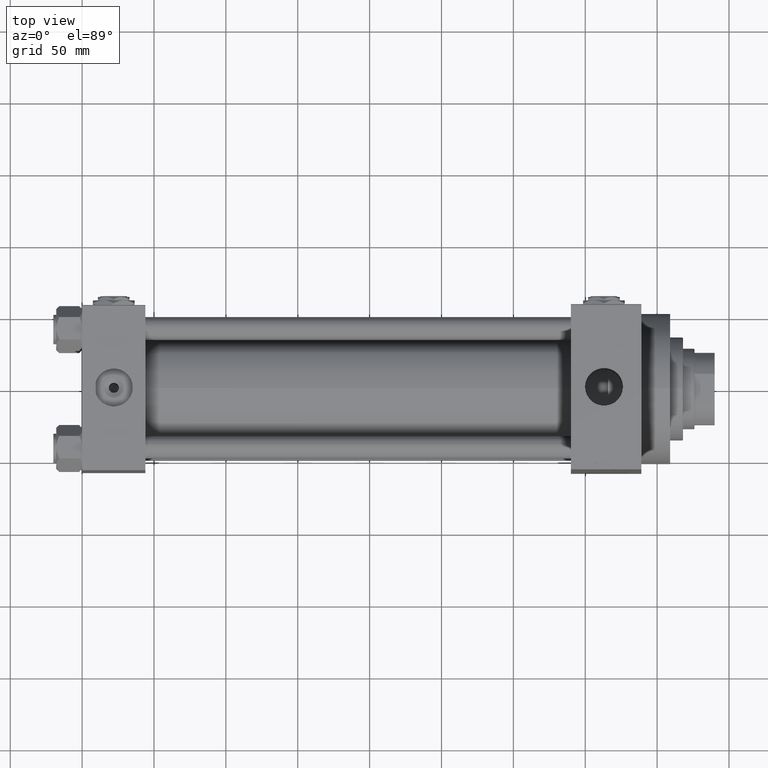
[diagram: clean part render]
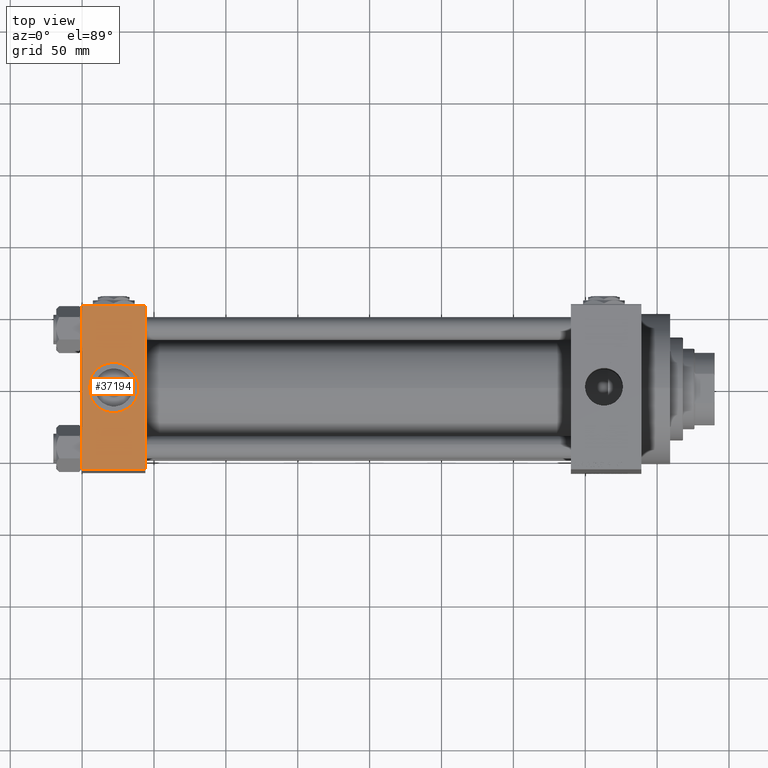
[diagram: same view with one face highlighted and labeled with its STEP entity id]
A machine part, top view. The second image highlights one B-rep face of the part: STEP entity #37194.
In plain terms, the highlighted planar face has unit normal (0, 0, -1).
Its self-contained STEP definition (entity closure, byte-faithful):
#397 = EDGE_CURVE ( 'NONE', #19830, #35006, #3079, .T. ) ;
#580 = DIRECTION ( 'NONE',  ( 0.000000000000000000, 1.206764157201257045E-16, -1.000000000000000000 ) ) ;
#958 = VECTOR ( 'NONE', #6025, 1000.000000000000000 ) ;
#1063 = VECTOR ( 'NONE', #16300, 1000.000000000000000 ) ;
#1800 = EDGE_CURVE ( 'NONE', #12320, #1850, #26726, .T. ) ;
#1850 = VERTEX_POINT ( 'NONE', #41570 ) ;
#2497 = CARTESIAN_POINT ( 'NONE',  ( 0.000000000000000000, 57.00000000000000711, 57.50000000000000711 ) ) ;
#3079 = CIRCLE ( 'NONE', #31226, 17.50000000000000000 ) ;
#6025 = DIRECTION ( 'NONE',  ( 1.000000000000000000, 0.000000000000000000, 0.000000000000000000 ) ) ;
#6291 = ORIENTED_EDGE ( 'NONE', *, *, #35389, .T. ) ;
#6375 = ORIENTED_EDGE ( 'NONE', *, *, #17767, .T. ) ;
#6543 = ORIENTED_EDGE ( 'NONE', *, *, #44318, .T. ) ;
#8341 = DIRECTION ( 'NONE',  ( 0.000000000000000000, 0.000000000000000000, 1.000000000000000000 ) ) ;
#8587 = CARTESIAN_POINT ( 'NONE',  ( 0.000000000000000000, -57.00000000000003553, 57.49999999999999289 ) ) ;
#12320 = VERTEX_POINT ( 'NONE', #26836 ) ;
#13076 = LINE ( 'NONE', #28446, #958 ) ;
#13130 = FACE_BOUND ( 'NONE', #46674, .T. ) ;
#13555 = DIRECTION ( 'NONE',  ( -1.000000000000000000, 0.000000000000000000, 0.000000000000000000 ) ) ;
#15892 = CARTESIAN_POINT ( 'NONE',  ( 22.00000000000000000, -8.673617379884035472E-15, 57.50000000000000000 ) ) ;
#16300 = DIRECTION ( 'NONE',  ( 0.000000000000000000, -1.000000000000000000, -1.206764157201257045E-16 ) ) ;
#17493 = CARTESIAN_POINT ( 'NONE',  ( 22.00000000000000000, -8.673617379884035472E-15, 57.50000000000000000 ) ) ;
#17732 = DIRECTION ( 'NONE',  ( 0.000000000000000000, 0.000000000000000000, 1.000000000000000000 ) ) ;
#17767 = EDGE_CURVE ( 'NONE', #27419, #1850, #13076, .T. ) ;
#19830 = VERTEX_POINT ( 'NONE', #27940 ) ;
#21923 = CARTESIAN_POINT ( 'NONE',  ( 44.00000000000000000, 57.49999999999999289, 57.50000000000000711 ) ) ;
#23977 = FACE_OUTER_BOUND ( 'NONE', #41885, .T. ) ;
#26726 = LINE ( 'NONE', #21923, #39316 ) ;
#26836 = CARTESIAN_POINT ( 'NONE',  ( 44.00000000000000000, 57.00000000000000711, 57.50000000000000711 ) ) ;
#27419 = VERTEX_POINT ( 'NONE', #8587 ) ;
#27940 = CARTESIAN_POINT ( 'NONE',  ( 4.499999999999997335, -6.530485481376167224E-15, 57.50000000000000000 ) ) ;
#28006 = DIRECTION ( 'NONE',  ( 0.000000000000000000, 1.000000000000000000, 1.206764157201257045E-16 ) ) ;
#28446 = CARTESIAN_POINT ( 'NONE',  ( 44.00000000000000000, -57.00000000000003553, 57.49999999999999289 ) ) ;
#28634 = LINE ( 'NONE', #43992, #1063 ) ;
#28671 = CARTESIAN_POINT ( 'NONE',  ( 0.000000000000000000, 57.00000000000000711, 57.50000000000000711 ) ) ;
#30832 = EDGE_CURVE ( 'NONE', #35006, #19830, #41469, .T. ) ;
#31226 = AXIS2_PLACEMENT_3D ( 'NONE', #17493, #17732, #40397 ) ;
#31254 = DIRECTION ( 'NONE',  ( 1.000000000000000000, 0.000000000000000000, 0.000000000000000000 ) ) ;
#33271 = DIRECTION ( 'NONE',  ( 0.000000000000000000, -1.000000000000000000, -1.206764157201257045E-16 ) ) ;
#34306 = AXIS2_PLACEMENT_3D ( 'NONE', #43360, #580, #28006 ) ;
#35006 = VERTEX_POINT ( 'NONE', #37616 ) ;
#35389 = EDGE_CURVE ( 'NONE', #12320, #43158, #47810, .T. ) ;
#37194 = ADVANCED_FACE ( 'NONE', ( #13130, #23977 ), #39086, .F. ) ;
#37616 = CARTESIAN_POINT ( 'NONE',  ( 39.50000000000000000, -8.673617379884035472E-15, 57.50000000000000000 ) ) ;
#39086 = PLANE ( 'NONE',  #34306 ) ;
#39316 = VECTOR ( 'NONE', #33271, 1000.000000000000000 ) ;
#40397 = DIRECTION ( 'NONE',  ( 1.000000000000000000, 0.000000000000000000, 0.000000000000000000 ) ) ;
#41469 = CIRCLE ( 'NONE', #48710, 17.50000000000000000 ) ;
#41570 = CARTESIAN_POINT ( 'NONE',  ( 44.00000000000000000, -57.00000000000003553, 57.49999999999999289 ) ) ;
#41885 = EDGE_LOOP ( 'NONE', ( #6543, #6375, #44635, #6291 ) ) ;
#42587 = ORIENTED_EDGE ( 'NONE', *, *, #397, .F. ) ;
#43158 = VERTEX_POINT ( 'NONE', #2497 ) ;
#43360 = CARTESIAN_POINT ( 'NONE',  ( 44.00000000000000000, 57.49999999999999289, 57.50000000000000711 ) ) ;
#43992 = CARTESIAN_POINT ( 'NONE',  ( 0.000000000000000000, 57.49999999999999289, 57.50000000000000711 ) ) ;
#44318 = EDGE_CURVE ( 'NONE', #43158, #27419, #28634, .T. ) ;
#44395 = ORIENTED_EDGE ( 'NONE', *, *, #30832, .F. ) ;
#44635 = ORIENTED_EDGE ( 'NONE', *, *, #1800, .F. ) ;
#46674 = EDGE_LOOP ( 'NONE', ( #44395, #42587 ) ) ;
#47119 = VECTOR ( 'NONE', #13555, 1000.000000000000000 ) ;
#47810 = LINE ( 'NONE', #28671, #47119 ) ;
#48710 = AXIS2_PLACEMENT_3D ( 'NONE', #15892, #8341, #31254 ) ;